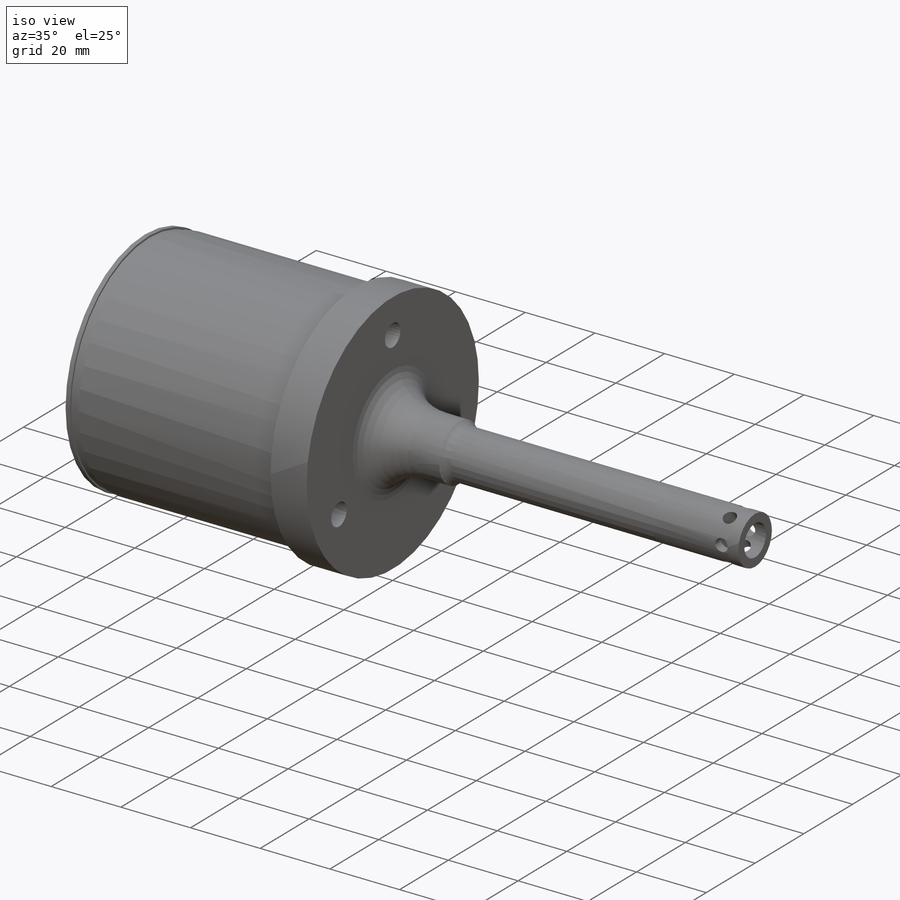
[diagram: iso view]
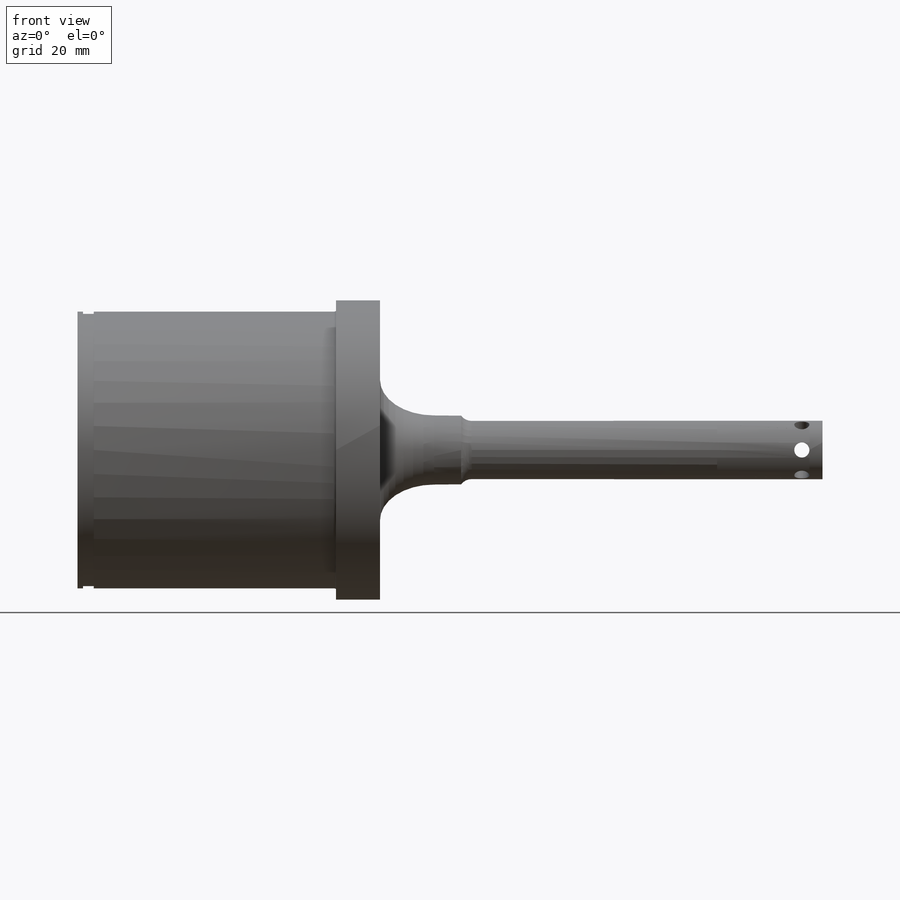
[diagram: front view]
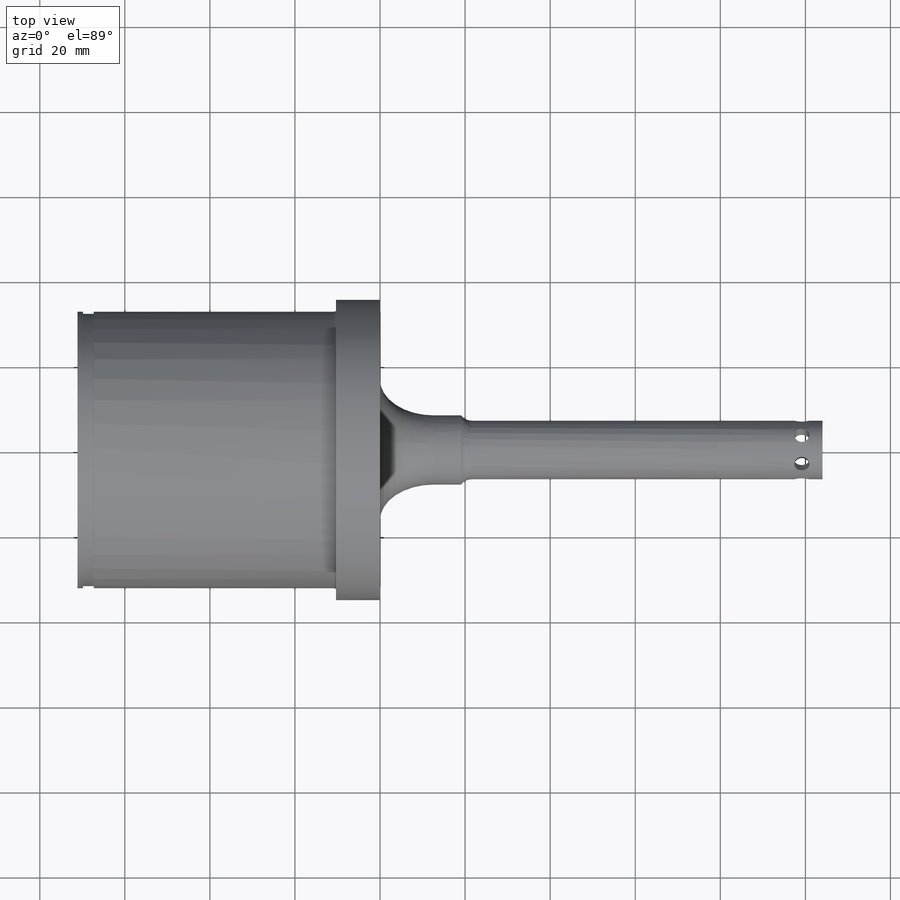
[diagram: top view]
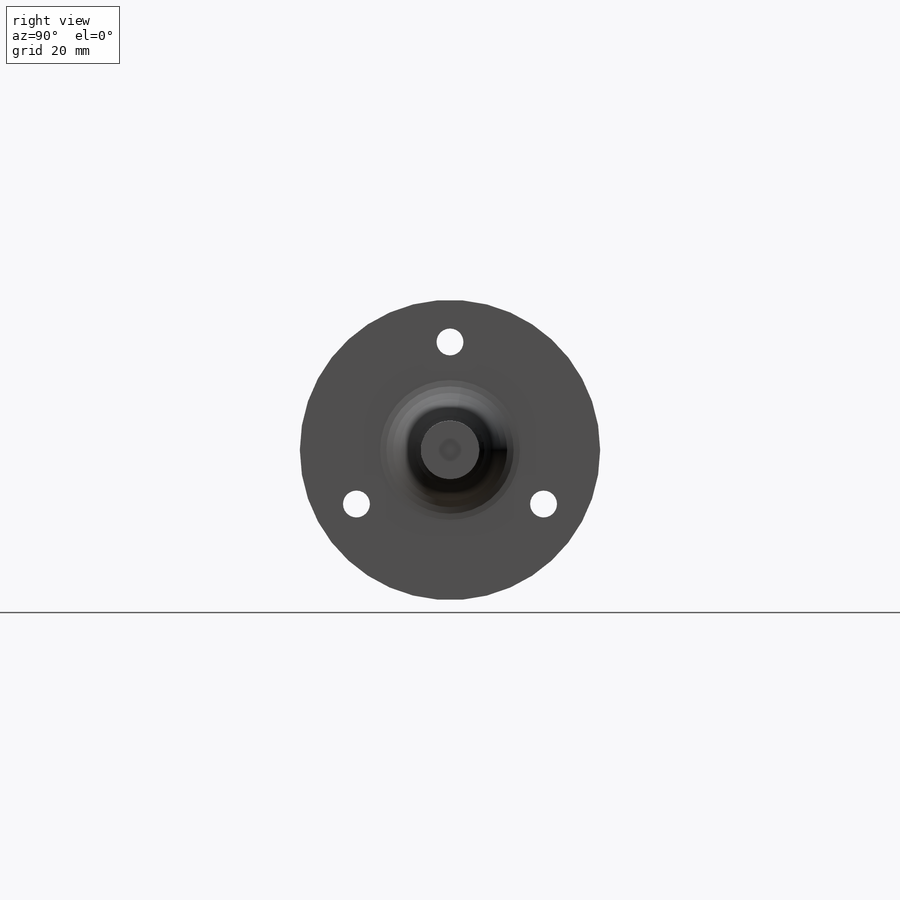
[diagram: right view]
SOLIDWORKS PART (.sldprt)
format: sldprt  version: not decoded by parser v0  size: 393,216 bytes
history: native  units: mm
features: sketch x7, cut_revolve x3, plane x2, pattern_circular x2, material x1, revolve x1, cut_extrude x1, hole x1 (+14 scaffold rows collapsed; 3 parser-record rows omitted)
feature tree (35):
  scaffold x14  (default folders/planes/origin — collapsed)
  material  "AISI 4340 Steel, normalized"
  sketch  "Sketch1"  dims[c1.D9=3.175mm c1.D1=13.7668mm c1.D2=10.3632mm c1.D3=65.532mm c1.D4=70.612mm c1.D5=16.256mm c1.D6=104.013mm c1.D7=60.96mm c1.D8=33.02mm c2.D9=25.4mm c2.D10=12.7mm c2.D11=6.35mm c2.D7=71.12mm]
  revolve  "Base Revolve"  Angle=360deg
  parser-record x3  (decoder bookkeeping rows leaked as tree rows — omitted from the tree; the rows remain in map.json)
  plane  "Thread Start"  Offset=100.9396mm
  plane  "Thread End"  Offset=79.248mm
  sketch  "Sketch4"  dims[D1=6.3246mm D2=25.4mm]
  cut_extrude  "Dowel Pin Hole"  [1 undecoded]
  pattern_circular  "CirPattern1"  Count=3 Angle=360deg
  sketch  "Sketch9"  dims[D1=3.556mm]
  hole  "Cotter Pin Hole"  Diameter=55.88mm
  pattern_circular  "CirPattern3"  Count=3 Angle=360deg
  sketch  "Sketch10"  dims[c1.D1=8.89mm c2.D1=6.731mm]
  sketch  "Sketch14"  dims[D1=5.08mm D2=7.62mm D3=25.4mm D4=61.214mm]
  cut_revolve  "Inside Cut"  Angle=360deg
  sketch  "Sketch7"  dims[D1=30.48mm D2=3.048mm]
  cut_revolve  "Axle Relief"  Angle=360deg
  sketch  "Sketch11"  dims[D1=1.016mm D2=0.5588mm D3=65.0367mm D4=~0.080177mm D5=1.27mm D6=2.54mm D7=0.508mm]
  cut_revolve  "Final Cut"  Angle=360deg
decode coverage: 14 of 15 modeling features carry decoded parameters
note: ~ marks probable driven/reference dimensions
note: 1 parameter value undecoded
note: suppression state not decoded; provenance and decode notes live in map.json
